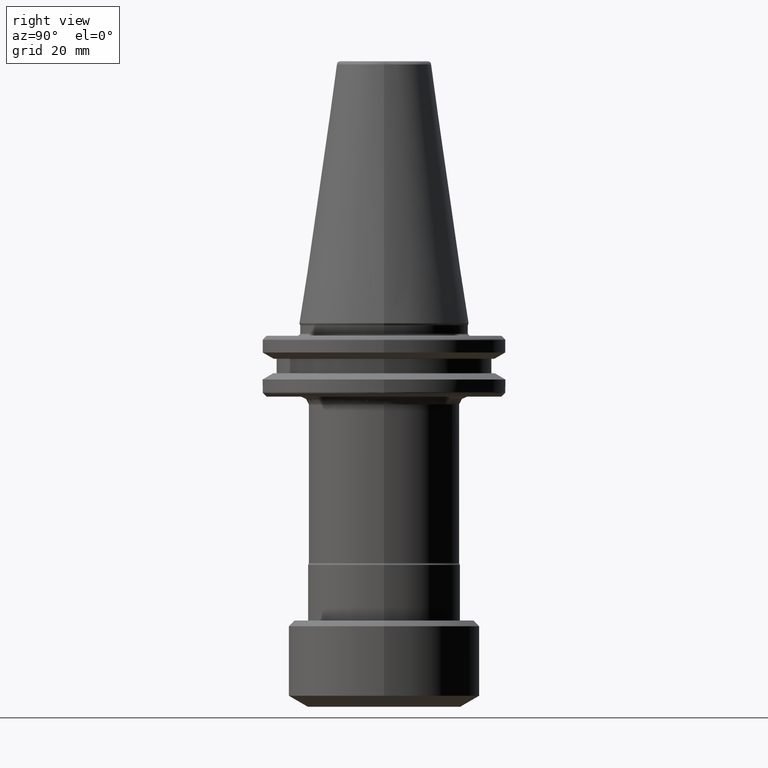
[diagram: clean part render]
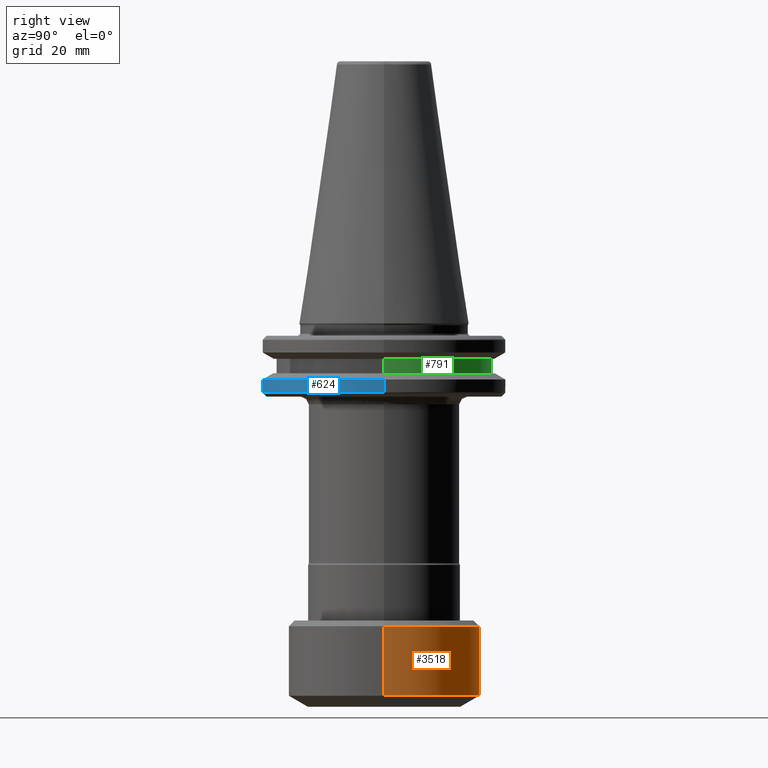
[diagram: same view with three faces highlighted in distinct colors, each labeled with its STEP entity id]
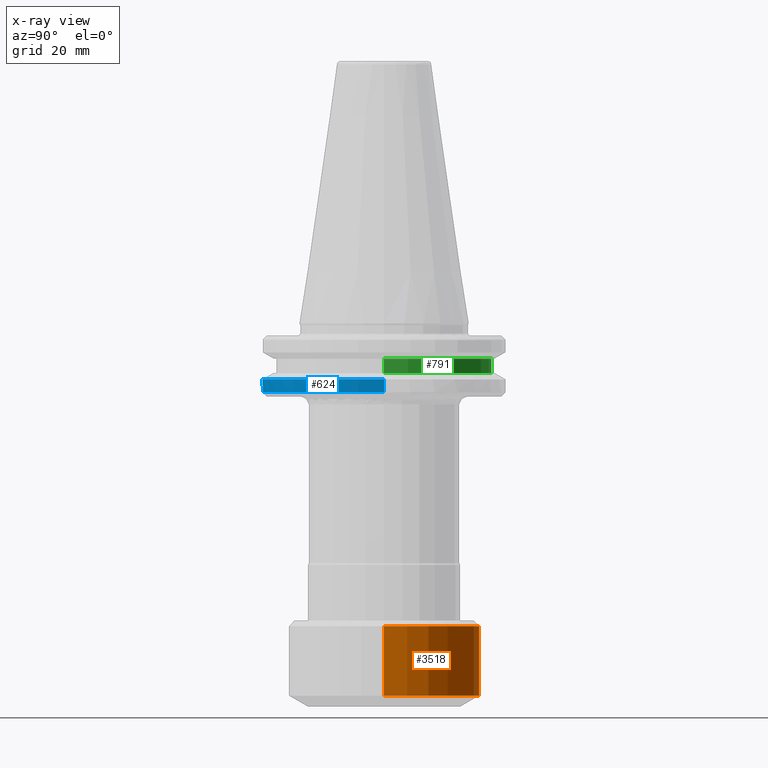
[diagram: x-ray of the same camera — body ghosted, the three highlighted faces saturated]
A machine part, right view with three faces highlighted in distinct colors.
The next image is the same camera in x-ray (body ghosted, the three faces saturated) — at least one of them is partly hidden behind the body in this view.
Their STEP definitions:

[orange] entity #3518 — the highlighted cylindrical surface (partial cylindrical patch) has radius 25 mm, axis along (-0, -0, -1).
#45 = ORIENTED_EDGE ( 'NONE', *, *, #2188, .F. ) ;
#62 = EDGE_CURVE ( 'NONE', #1498, #1487, #955, .T. ) ;
#235 = FACE_OUTER_BOUND ( 'NONE', #2692, .T. ) ;
#379 = AXIS2_PLACEMENT_3D ( 'NONE', #2874, #2961, #905 ) ;
#494 = CYLINDRICAL_SURFACE ( 'NONE', #379, 25.00000000000000000 ) ;
#611 = DIRECTION ( 'NONE',  ( -0.0000000000000000000, -0.0000000000000000000, -1.000000000000000000 ) ) ;
#615 = CARTESIAN_POINT ( 'NONE',  ( -25.00000000000000000, 0.0000000000000000000, -102.7259387484206200 ) ) ;
#617 = AXIS2_PLACEMENT_3D ( 'NONE', #1418, #2289, #2809 ) ;
#831 = CARTESIAN_POINT ( 'NONE',  ( -25.00000000000000000, 3.061616997868383000E-015, -97.11324865400000300 ) ) ;
#905 = DIRECTION ( 'NONE',  ( -1.000000000000000000, 0.0000000000000000000, 0.0000000000000000000 ) ) ;
#955 = LINE ( 'NONE', #2937, #1921 ) ;
#1089 = EDGE_CURVE ( 'NONE', #3664, #1498, #3712, .T. ) ;
#1148 = VECTOR ( 'NONE', #611, 1000.000000000000000 ) ;
#1418 = CARTESIAN_POINT ( 'NONE',  ( 0.0000000000000000000, 0.0000000000000000000, -97.11324865400000300 ) ) ;
#1487 = VERTEX_POINT ( 'NONE', #3240 ) ;
#1498 = VERTEX_POINT ( 'NONE', #3201 ) ;
#1917 = LINE ( 'NONE', #615, #1148 ) ;
#1921 = VECTOR ( 'NONE', #3492, 1000.000000000000000 ) ;
#2100 = VERTEX_POINT ( 'NONE', #831 ) ;
#2188 = EDGE_CURVE ( 'NONE', #3664, #2100, #1917, .T. ) ;
#2289 = DIRECTION ( 'NONE',  ( -0.0000000000000000000, -0.0000000000000000000, -1.000000000000000000 ) ) ;
#2354 = CIRCLE ( 'NONE', #617, 25.00000000000000000 ) ;
#2361 = ORIENTED_EDGE ( 'NONE', *, *, #1089, .T. ) ;
#2692 = EDGE_LOOP ( 'NONE', ( #2361, #3684, #4048, #45 ) ) ;
#2809 = DIRECTION ( 'NONE',  ( -1.000000000000000000, 0.0000000000000000000, 0.0000000000000000000 ) ) ;
#2834 = AXIS2_PLACEMENT_3D ( 'NONE', #3957, #3954, #3953 ) ;
#2874 = CARTESIAN_POINT ( 'NONE',  ( 0.0000000000000000000, 0.0000000000000000000, -102.7259387484206200 ) ) ;
#2937 = CARTESIAN_POINT ( 'NONE',  ( 25.00000000000000000, 3.061616997868383000E-015, -102.7259387484206200 ) ) ;
#2961 = DIRECTION ( 'NONE',  ( -0.0000000000000000000, -0.0000000000000000000, -1.000000000000000000 ) ) ;
#3201 = CARTESIAN_POINT ( 'NONE',  ( 25.00000000000000000, 3.061616997868383000E-015, -78.99999999999998600 ) ) ;
#3240 = CARTESIAN_POINT ( 'NONE',  ( 25.00000000000000000, 0.0000000000000000000, -97.11324865400000300 ) ) ;
#3360 = CARTESIAN_POINT ( 'NONE',  ( -25.00000000000000000, 0.0000000000000000000, -78.99999999999998600 ) ) ;
#3492 = DIRECTION ( 'NONE',  ( -0.0000000000000000000, -0.0000000000000000000, -1.000000000000000000 ) ) ;
#3518 = ADVANCED_FACE ( 'NONE', ( #235 ), #494, .T. ) ;
#3664 = VERTEX_POINT ( 'NONE', #3360 ) ;
#3684 = ORIENTED_EDGE ( 'NONE', *, *, #62, .T. ) ;
#3712 = CIRCLE ( 'NONE', #2834, 25.00000000000000000 ) ;
#3953 = DIRECTION ( 'NONE',  ( -1.000000000000000000, 0.0000000000000000000, 0.0000000000000000000 ) ) ;
#3954 = DIRECTION ( 'NONE',  ( -0.0000000000000000000, -0.0000000000000000000, -1.000000000000000000 ) ) ;
#3957 = CARTESIAN_POINT ( 'NONE',  ( 0.0000000000000000000, 0.0000000000000000000, -78.99999999999998600 ) ) ;
#4048 = ORIENTED_EDGE ( 'NONE', *, *, #4092, .F. ) ;
#4092 = EDGE_CURVE ( 'NONE', #2100, #1487, #2354, .T. ) ;

[blue] entity #624 — the highlighted cylindrical surface (partial cylindrical patch) has radius 31.75 mm, axis along (0, 0, 1).
#111 = CARTESIAN_POINT ( 'NONE',  ( 8.717907035835203500, -30.52966748598040400, -17.93431457482318700 ) ) ;
#121 = VECTOR ( 'NONE', #3832, 1000.000000000000000 ) ;
#148 = EDGE_CURVE ( 'NONE', #3008, #2595, #1984, .T. ) ;
#343 = DIRECTION ( 'NONE',  ( 1.000000000000000000, 0.0000000000000000000, 0.0000000000000000000 ) ) ;
#424 = DIRECTION ( 'NONE',  ( -0.0000000000000000000, -0.0000000000000000000, 1.000000000000000000 ) ) ;
#484 = DIRECTION ( 'NONE',  ( 0.0000000000000000000, 0.0000000000000000000, 1.000000000000000000 ) ) ;
#503 = CIRCLE ( 'NONE', #3892, 31.75000000000000000 ) ;
#555 = EDGE_CURVE ( 'NONE', #807, #878, #1189, .T. ) ;
#624 = ADVANCED_FACE ( 'NONE', ( #886 ), #3137, .T. ) ;
#778 = DIRECTION ( 'NONE',  ( -1.000000000000000000, 0.0000000000000000000, 5.463695987234200200E-017 ) ) ;
#779 = DIRECTION ( 'NONE',  ( -0.0000000000000000000, -0.0000000000000000000, 1.000000000000000000 ) ) ;
#783 = CARTESIAN_POINT ( 'NONE',  ( 0.0000000000000000000, 0.0000000000000000000, -14.62183664273912100 ) ) ;
#784 = CARTESIAN_POINT ( 'NONE',  ( 0.0000000000000000000, 0.0000000000000000000, -17.93431457499999800 ) ) ;
#796 = CARTESIAN_POINT ( 'NONE',  ( 0.0000000000000000000, 0.0000000000000000000, -17.93431457417125300 ) ) ;
#802 = AXIS2_PLACEMENT_3D ( 'NONE', #3843, #3839, #3837 ) ;
#807 = VERTEX_POINT ( 'NONE', #1638 ) ;
#874 = CIRCLE ( 'NONE', #3482, 31.75000000000000000 ) ;
#878 = VERTEX_POINT ( 'NONE', #3288 ) ;
#886 = FACE_OUTER_BOUND ( 'NONE', #3722, .T. ) ;
#918 = CARTESIAN_POINT ( 'NONE',  ( -18.50000000015969400, -25.80334280725849200, -14.62183664273912400 ) ) ;
#994 = ORIENTED_EDGE ( 'NONE', *, *, #1193, .F. ) ;
#1039 = CIRCLE ( 'NONE', #2970, 31.75000000000000000 ) ;
#1045 = ORIENTED_EDGE ( 'NONE', *, *, #148, .T. ) ;
#1073 = ORIENTED_EDGE ( 'NONE', *, *, #1817, .F. ) ;
#1131 = ORIENTED_EDGE ( 'NONE', *, *, #2126, .F. ) ;
#1139 = CIRCLE ( 'NONE', #2369, 31.75000000000000000 ) ;
#1189 = LINE ( 'NONE', #2252, #121 ) ;
#1193 = EDGE_CURVE ( 'NONE', #1932, #3231, #2668, .T. ) ;
#1259 = DIRECTION ( 'NONE',  ( 0.0000000000000000000, 0.0000000000000000000, 1.000000000000000000 ) ) ;
#1304 = CIRCLE ( 'NONE', #2253, 31.75000000054813800 ) ;
#1348 = LINE ( 'NONE', #2321, #2025 ) ;
#1533 = CARTESIAN_POINT ( 'NONE',  ( -31.75000000000000000, 3.888253587292846500E-015, -17.93431457417125300 ) ) ;
#1577 = EDGE_CURVE ( 'NONE', #1854, #3231, #1139, .T. ) ;
#1600 = AXIS2_PLACEMENT_3D ( 'NONE', #784, #484, #3047 ) ;
#1633 = CARTESIAN_POINT ( 'NONE',  ( -31.75000000000000000, 3.888253587292846500E-015, -14.62183664200001100 ) ) ;
#1638 = CARTESIAN_POINT ( 'NONE',  ( 31.75000000000000000, -5.701922373415167100E-010, -17.93431457499999800 ) ) ;
#1640 = CARTESIAN_POINT ( 'NONE',  ( -25.80334280725849200, -18.50000000015969400, -14.62183664273912400 ) ) ;
#1785 = ORIENTED_EDGE ( 'NONE', *, *, #3986, .T. ) ;
#1791 = CARTESIAN_POINT ( 'NONE',  ( -8.600431041580581100, -30.56296919460831100, -14.62183664254379800 ) ) ;
#1815 = DIRECTION ( 'NONE',  ( 0.0000000000000000000, 0.0000000000000000000, 1.000000000000000000 ) ) ;
#1817 = EDGE_CURVE ( 'NONE', #3008, #2401, #1348, .T. ) ;
#1854 = VERTEX_POINT ( 'NONE', #1791 ) ;
#1871 = ORIENTED_EDGE ( 'NONE', *, *, #3523, .T. ) ;
#1888 = CARTESIAN_POINT ( 'NONE',  ( -18.50000000000000000, -25.80334280669851700, -17.93431457499999800 ) ) ;
#1932 = VERTEX_POINT ( 'NONE', #1640 ) ;
#1984 = CIRCLE ( 'NONE', #2659, 31.75000000000000000 ) ;
#2025 = VECTOR ( 'NONE', #1815, 1000.000000000000000 ) ;
#2048 = DIRECTION ( 'NONE',  ( 1.000000000000000000, 0.0000000000000000000, 0.0000000000000000000 ) ) ;
#2064 = DIRECTION ( 'NONE',  ( 0.0000000000000000000, 0.0000000000000000000, 1.000000000000000000 ) ) ;
#2077 = CARTESIAN_POINT ( 'NONE',  ( 0.0000000000000000000, 0.0000000000000000000, -17.93431457479792400 ) ) ;
#2124 = DIRECTION ( 'NONE',  ( -1.000000000000000000, 0.0000000000000000000, -5.463695987328524000E-017 ) ) ;
#2126 = EDGE_CURVE ( 'NONE', #1854, #878, #1304, .T. ) ;
#2130 = DIRECTION ( 'NONE',  ( -2.997010603902405300E-017, -0.0000000000000000000, 1.000000000000000000 ) ) ;
#2137 = CARTESIAN_POINT ( 'NONE',  ( 4.860661613871496800E-017, 0.0000000000000000000, -14.62183664200000900 ) ) ;
#2153 = ORIENTED_EDGE ( 'NONE', *, *, #1577, .T. ) ;
#2252 = CARTESIAN_POINT ( 'NONE',  ( 31.75000000000000000, 0.0000000000000000000, -17.93431457499999800 ) ) ;
#2253 = AXIS2_PLACEMENT_3D ( 'NONE', #783, #779, #778 ) ;
#2294 = ORIENTED_EDGE ( 'NONE', *, *, #2788, .F. ) ;
#2321 = CARTESIAN_POINT ( 'NONE',  ( -31.75000000000000000, 3.888253587292846500E-015, -17.93431457499999800 ) ) ;
#2369 = AXIS2_PLACEMENT_3D ( 'NONE', #2977, #2973, #2972 ) ;
#2401 = VERTEX_POINT ( 'NONE', #1633 ) ;
#2519 = VERTEX_POINT ( 'NONE', #3469 ) ;
#2524 = CARTESIAN_POINT ( 'NONE',  ( 0.0000000000000000000, 0.0000000000000000000, -17.93431457499999800 ) ) ;
#2568 = ORIENTED_EDGE ( 'NONE', *, *, #2609, .T. ) ;
#2595 = VERTEX_POINT ( 'NONE', #4015 ) ;
#2608 = ORIENTED_EDGE ( 'NONE', *, *, #555, .T. ) ;
#2609 = EDGE_CURVE ( 'NONE', #2519, #3459, #503, .T. ) ;
#2659 = AXIS2_PLACEMENT_3D ( 'NONE', #796, #4040, #3659 ) ;
#2668 = CIRCLE ( 'NONE', #802, 31.75000000054814500 ) ;
#2754 = AXIS2_PLACEMENT_3D ( 'NONE', #2137, #2130, #2124 ) ;
#2763 = DIRECTION ( 'NONE',  ( 1.000000000000000000, 0.0000000000000000000, 0.0000000000000000000 ) ) ;
#2788 = EDGE_CURVE ( 'NONE', #2401, #1932, #3090, .T. ) ;
#2806 = CARTESIAN_POINT ( 'NONE',  ( 0.0000000000000000000, 0.0000000000000000000, -17.93431457382981300 ) ) ;
#2814 = EDGE_CURVE ( 'NONE', #3459, #807, #1039, .T. ) ;
#2890 = VERTEX_POINT ( 'NONE', #1888 ) ;
#2923 = DIRECTION ( 'NONE',  ( 1.000000000000000000, 0.0000000000000000000, 0.0000000000000000000 ) ) ;
#2930 = DIRECTION ( 'NONE',  ( -0.0000000000000000000, -0.0000000000000000000, 1.000000000000000000 ) ) ;
#2936 = CARTESIAN_POINT ( 'NONE',  ( 0.0000000000000000000, 0.0000000000000000000, -17.93431457499999800 ) ) ;
#2970 = AXIS2_PLACEMENT_3D ( 'NONE', #2077, #2064, #2048 ) ;
#2972 = DIRECTION ( 'NONE',  ( 1.000000000000000000, 1.776356839400250500E-015, 0.0000000000000000000 ) ) ;
#2973 = DIRECTION ( 'NONE',  ( -0.0000000000000000000, -0.0000000000000000000, -1.000000000000000000 ) ) ;
#2977 = CARTESIAN_POINT ( 'NONE',  ( 0.0000000000000000000, 0.0000000000000000000, -14.62183664200000300 ) ) ;
#3008 = VERTEX_POINT ( 'NONE', #1533 ) ;
#3047 = DIRECTION ( 'NONE',  ( 1.000000000000000000, 0.0000000000000000000, 0.0000000000000000000 ) ) ;
#3090 = CIRCLE ( 'NONE', #2754, 31.75000000000001400 ) ;
#3137 = CYLINDRICAL_SURFACE ( 'NONE', #1600, 31.75000000000000000 ) ;
#3211 = ORIENTED_EDGE ( 'NONE', *, *, #2814, .T. ) ;
#3231 = VERTEX_POINT ( 'NONE', #918 ) ;
#3288 = CARTESIAN_POINT ( 'NONE',  ( 31.75000000054813800, 0.0000000000000000000, -14.62183664273912100 ) ) ;
#3459 = VERTEX_POINT ( 'NONE', #111 ) ;
#3469 = CARTESIAN_POINT ( 'NONE',  ( -8.600431040408818000, -30.56296919343655500, -17.93431457406979800 ) ) ;
#3482 = AXIS2_PLACEMENT_3D ( 'NONE', #2806, #1259, #2763 ) ;
#3523 = EDGE_CURVE ( 'NONE', #2595, #2890, #3560, .T. ) ;
#3560 = CIRCLE ( 'NONE', #3872, 31.75000000000000000 ) ;
#3659 = DIRECTION ( 'NONE',  ( 1.000000000000000000, 0.0000000000000000000, 0.0000000000000000000 ) ) ;
#3722 = EDGE_LOOP ( 'NONE', ( #1073, #1045, #1871, #1785, #2568, #3211, #2608, #1131, #2153, #994, #2294 ) ) ;
#3832 = DIRECTION ( 'NONE',  ( 0.0000000000000000000, 0.0000000000000000000, 1.000000000000000000 ) ) ;
#3837 = DIRECTION ( 'NONE',  ( 1.000000000000000000, 0.0000000000000000000, 0.0000000000000000000 ) ) ;
#3839 = DIRECTION ( 'NONE',  ( -0.0000000000000000000, -0.0000000000000000000, 1.000000000000000000 ) ) ;
#3843 = CARTESIAN_POINT ( 'NONE',  ( 0.0000000000000000000, 0.0000000000000000000, -14.62183664273912400 ) ) ;
#3872 = AXIS2_PLACEMENT_3D ( 'NONE', #2524, #424, #343 ) ;
#3892 = AXIS2_PLACEMENT_3D ( 'NONE', #2936, #2930, #2923 ) ;
#3986 = EDGE_CURVE ( 'NONE', #2890, #2519, #874, .T. ) ;
#4015 = CARTESIAN_POINT ( 'NONE',  ( -25.80334280669851700, -18.50000000000000000, -17.93431457499999800 ) ) ;
#4040 = DIRECTION ( 'NONE',  ( 0.0000000000000000000, 0.0000000000000000000, 1.000000000000000000 ) ) ;

[green] entity #791 — the highlighted cylindrical surface (partial cylindrical patch) has radius 28 mm, axis along (-0, 0, 1).
#13 = LINE ( 'NONE', #2407, #1407 ) ;
#88 = AXIS2_PLACEMENT_3D ( 'NONE', #396, #2308, #988 ) ;
#255 = ORIENTED_EDGE ( 'NONE', *, *, #651, .T. ) ;
#259 = ORIENTED_EDGE ( 'NONE', *, *, #3547, .T. ) ;
#260 = CARTESIAN_POINT ( 'NONE',  ( 28.00000000000000000, 0.0000000000000000000, -13.00000000244967200 ) ) ;
#310 = VERTEX_POINT ( 'NONE', #2721 ) ;
#322 = DIRECTION ( 'NONE',  ( -3.097720492815727700E-017, 0.0000000000000000000, 1.000000000000000000 ) ) ;
#396 = CARTESIAN_POINT ( 'NONE',  ( 0.0000000000000000000, 0.0000000000000000000, -13.00000000200000000 ) ) ;
#397 = EDGE_LOOP ( 'NONE', ( #259, #255, #2192, #817 ) ) ;
#568 = AXIS2_PLACEMENT_3D ( 'NONE', #1764, #322, #2425 ) ;
#651 = EDGE_CURVE ( 'NONE', #1374, #2599, #13, .T. ) ;
#719 = VECTOR ( 'NONE', #1160, 1000.000000000000000 ) ;
#791 = ADVANCED_FACE ( 'NONE', ( #2471 ), #1599, .T. ) ;
#817 = ORIENTED_EDGE ( 'NONE', *, *, #3164, .F. ) ;
#988 = DIRECTION ( 'NONE',  ( 1.000000000000000000, 0.0000000000000000000, 6.195440985631454100E-017 ) ) ;
#1160 = DIRECTION ( 'NONE',  ( -3.097720492815727700E-017, 0.0000000000000000000, 1.000000000000000000 ) ) ;
#1279 = CARTESIAN_POINT ( 'NONE',  ( 28.00000000000000000, 0.0000000000000000000, -13.00000000199999800 ) ) ;
#1300 = EDGE_CURVE ( 'NONE', #2599, #310, #3376, .T. ) ;
#1374 = VERTEX_POINT ( 'NONE', #3392 ) ;
#1407 = VECTOR ( 'NONE', #2733, 1000.000000000000000 ) ;
#1451 = LINE ( 'NONE', #1279, #719 ) ;
#1539 = CIRCLE ( 'NONE', #568, 28.00000000000000000 ) ;
#1599 = CYLINDRICAL_SURFACE ( 'NONE', #88, 28.00000000000000000 ) ;
#1764 = CARTESIAN_POINT ( 'NONE',  ( 1.392960373910159400E-026, 0.0000000000000000000, -13.00000000244967400 ) ) ;
#2192 = ORIENTED_EDGE ( 'NONE', *, *, #1300, .T. ) ;
#2308 = DIRECTION ( 'NONE',  ( -3.097720492815727700E-017, 0.0000000000000000000, 1.000000000000000000 ) ) ;
#2327 = VERTEX_POINT ( 'NONE', #260 ) ;
#2335 = AXIS2_PLACEMENT_3D ( 'NONE', #3552, #3551, #3545 ) ;
#2407 = CARTESIAN_POINT ( 'NONE',  ( -28.00000000000000000, 3.429011037612589300E-015, -13.00000000200000200 ) ) ;
#2425 = DIRECTION ( 'NONE',  ( 1.000000000000000000, 0.0000000000000000000, 6.195440985631454100E-017 ) ) ;
#2471 = FACE_OUTER_BOUND ( 'NONE', #397, .T. ) ;
#2599 = VERTEX_POINT ( 'NONE', #2975 ) ;
#2721 = CARTESIAN_POINT ( 'NONE',  ( 28.00000000000000000, 0.0000000000000000000, -9.200000000801578500 ) ) ;
#2733 = DIRECTION ( 'NONE',  ( -3.097720492815727700E-017, 0.0000000000000000000, 1.000000000000000000 ) ) ;
#2975 = CARTESIAN_POINT ( 'NONE',  ( -28.00000000000000000, 3.429011037612589300E-015, -9.200000000801580300 ) ) ;
#3164 = EDGE_CURVE ( 'NONE', #2327, #310, #1451, .T. ) ;
#3376 = CIRCLE ( 'NONE', #2335, 28.00000000000000000 ) ;
#3392 = CARTESIAN_POINT ( 'NONE',  ( -28.00000000000000000, 3.429011037612589300E-015, -13.00000000244967400 ) ) ;
#3545 = DIRECTION ( 'NONE',  ( 1.000000000000000000, 0.0000000000000000000, 6.195440985631454100E-017 ) ) ;
#3547 = EDGE_CURVE ( 'NONE', #2327, #1374, #1539, .T. ) ;
#3551 = DIRECTION ( 'NONE',  ( 3.097720492815727700E-017, -0.0000000000000000000, -1.000000000000000000 ) ) ;
#3552 = CARTESIAN_POINT ( 'NONE',  ( -1.177133787641213500E-016, 0.0000000000000000000, -9.200000000801580300 ) ) ;